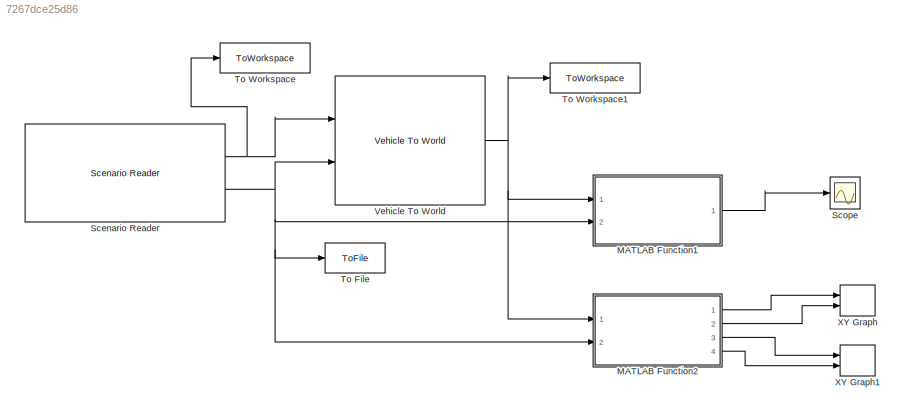
MODEL slx_7267dce25d86
KIND model
CONFIG AbsTol = auto
CONFIG EnableMultiTasking = off
CONFIG FixedStep = auto
CONFIG MaxStep = auto
CONFIG MinStep = auto
CONFIG RelTol = 1e-3
CONFIG SampleTimeConstraint = Unconstrained
CONFIG SolverName = FixedStepDiscrete
CONFIG StartTime = 0.0
CONFIG StopTime = 10.0
WORKSPACE source: mxarray member
WORKSPACE firstWarning = 1
WORKSPACE originalScenarioChecksum = '40B3C482BC2D2C68EC305C2064A27088'
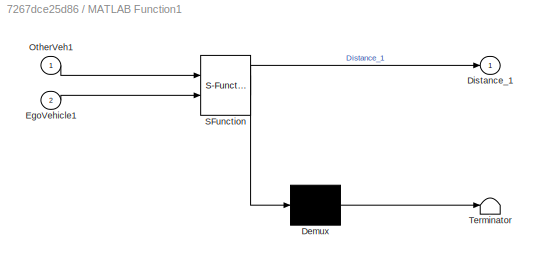
BLOCK [SubSystem] MATLAB Function1
  ErrorFcn = Stateflow.Translate.translate
  PermitHierarchicalResolution = ExplicitOnly
  Ports = [2, 1]
  RequestExecContextInheritance = off
  SFBlockType = MATLAB Function
  TreatAsAtomicUnit = on
BLOCK [Demux] MATLAB Function1/ Demux 
  Outputs = 1
  Ports = [1, 1]
BLOCK [S-Function] MATLAB Function1/ SFunction 
  EnableBusSupport = on
  FunctionName = sf_sfun
  PortCounts = [2 2]
  Ports = [2, 2]
  SFcnIsStateOwnerBlock = off
  SFunctionDeploymentMode = off
  Tag = Stateflow S-Function 2
BLOCK [Terminator] MATLAB Function1/ Terminator 
BLOCK [Outport] MATLAB Function1/Distance_1
BLOCK [Inport] MATLAB Function1/EgoVehicle1
  Port = 2
BLOCK [Inport] MATLAB Function1/OtherVeh1
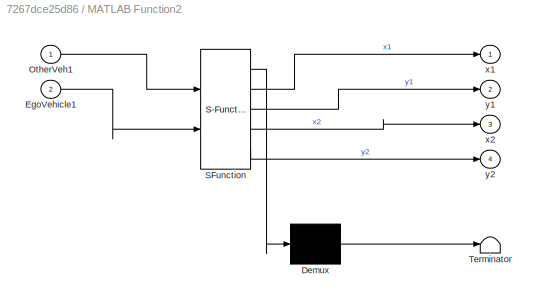
BLOCK [SubSystem] MATLAB Function2
  ErrorFcn = Stateflow.Translate.translate
  PermitHierarchicalResolution = ExplicitOnly
  Ports = [2, 4]
  RequestExecContextInheritance = off
  SFBlockType = MATLAB Function
  TreatAsAtomicUnit = on
BLOCK [Demux] MATLAB Function2/ Demux 
  Outputs = 1
  Ports = [1, 1]
BLOCK [S-Function] MATLAB Function2/ SFunction 
  EnableBusSupport = on
  FunctionName = sf_sfun
  PortCounts = [2 5]
  Ports = [2, 5]
  SFcnIsStateOwnerBlock = off
  SFunctionDeploymentMode = off
  Tag = Stateflow S-Function 1
BLOCK [Terminator] MATLAB Function2/ Terminator 
BLOCK [Inport] MATLAB Function2/EgoVehicle1
  Port = 2
BLOCK [Inport] MATLAB Function2/OtherVeh1
BLOCK [Outport] MATLAB Function2/x1
BLOCK [Outport] MATLAB Function2/x2
  Port = 3
BLOCK [Outport] MATLAB Function2/y1
  Port = 2
BLOCK [Outport] MATLAB Function2/y2
  Port = 4
BLOCK [Reference] Scenario Reader  REF=drivingscenarioandsensors/Scenario Reader
  Ports = [0, 2]
  SourceBlock = drivingscenarioandsensors/Scenario Reader
  SourceProductBaseCode = DR
  SourceType = driving.scenario.internal.ScenarioReader
BLOCK [Scope] Scope
  Floating = off
  NumInputPorts = 1
  Ports = [1]
  ScopeSpecificationString = Simulink.scopes.TimeScopeBlockCfg('CurrentConfiguration', extmgr.ConfigurationSet(extmgr.Configuration('Core','General UI',true),extmgr.Configuration('Core','Source UI',true),extmgr.Configuration('Sources','WiredSimulink',true),extmgr.Configuration('Visuals','Time Domain',true,'SerializedDisplays',{struct('MinYLimReal','-1.29589','MaxYLimReal','39.41957','YLabelReal','','MinYLimMag','0.00000','Max...<+1382ch>
BLOCK [ToFile] To File
  Filename = egoCar1.mat
  Ports = [1]
  SaveFormat = Timeseries
BLOCK [ToWorkspace] To Workspace
  FixptAsFi = on
  MaxDataPoints = inf
  Ports = [1]
  SampleTime = -1
  SaveFormat = Timeseries
  VariableName = Actors1
BLOCK [ToWorkspace] To Workspace1
  FixptAsFi = on
  MaxDataPoints = inf
  Ports = [1]
  SampleTime = -1
  SaveFormat = Timeseries
  VariableName = Actors2
BLOCK [Reference] Vehicle To World  REF=drivingscenarioandsensors/Vehicle To World
  Ports = [2, 1]
  SourceBlock = drivingscenarioandsensors/Vehicle To World
  SourceProductBaseCode = DR
  SourceType = driving.scenario.internal.VehicleToWorld
BLOCK [Record] XY Graph
  CompatibilityTag = XY
  FileSettingsInternal = {"entries":[{"content":{"excelSettings":{"content":{},"type":"Streamout.ExcelSettings"}},"type":"Streamout.FileSettingStorage","uuid":"b51cf517-17e0-4542-acce-b7d9d2cd1a5a"}],"packageUris":["http://schema.mathworks.com/mf0/streamout_blocks/R2020a"],"version":"1.0"}
  Layout = [1 1]
  Ports = [2]
  SignalsInternal = {"entries":[{"content":{"signals":[{"content":{"blockPath":["ScenarioAnalysis/XY Graph"],"channel":[],"dimensions":[1],"domain":"ScenarioAnalysis/XY Graph","lineColor":"#a2142f","plots":[1],"port":1,"sid":[],"signalID":35,"signalName":"MATLAB Function2:1"},"type":"RecordBlkView.Signal","uuid":"04b8474e-6d3d-4901-9223-983ad539c10e"},{"content":{"blockPath":["ScenarioAnalysis/XY Graph"],"channel":[]...<+409ch>
  VisualizationBindings = {"xyplotplugin":{"info":[{"series":[{"bindingParametersList":[{"parameter":"X-Axis","signalID":35,"signalName":"MATLAB Function2:1"},{"parameter":"Y-Axis","signalID":38,"signalName":"MATLAB Function2:2"}],"seriesID":38687}],"subplotID":1}]}}
BLOCK [Record] XY Graph1
  CompatibilityTag = XY
  FileSettingsInternal = {"entries":[{"content":{"excelSettings":{"content":{},"type":"Streamout.ExcelSettings"}},"type":"Streamout.FileSettingStorage","uuid":"6fa187cc-d8dd-4e57-b1e9-641f2adc0ef9"}],"packageUris":["http://schema.mathworks.com/mf0/streamout_blocks/R2020a"],"version":"1.0"}
  Layout = [1 1]
  Ports = [2]
  SignalsInternal = {"entries":[{"content":{"signals":[{"content":{"blockPath":["ScenarioAnalysis/XY Graph1"],"channel":[],"dimensions":[1],"domain":"ScenarioAnalysis/XY Graph1","lineColor":"#a2142f","plots":[1],"port":1,"sid":[],"signalID":27,"signalName":"MATLAB Function2:3"},"type":"RecordBlkView.Signal","uuid":"58223eaa-ceba-43fe-afc1-79236a0d2be0"},{"content":{"blockPath":["ScenarioAnalysis/XY Graph1"],"channel"...<+413ch>
  VisualizationBindings = {"xyplotplugin":{"info":[{"series":[{"bindingParametersList":[{"parameter":"X-Axis","signalID":27,"signalName":"MATLAB Function2:3"},{"parameter":"Y-Axis","signalID":30,"signalName":"MATLAB Function2:4"}],"seriesID":22770}],"subplotID":1}]}}
LINE MATLAB Function1:1 -> Scope:1
LINE MATLAB Function2:1 -> XY Graph:1
LINE MATLAB Function2:2 -> XY Graph:2
LINE MATLAB Function2:3 -> XY Graph1:1
LINE MATLAB Function2:4 -> XY Graph1:2
NET Scenario Reader:1 -> To Workspace:1, Vehicle To World:1
NET Scenario Reader:2 -> MATLAB Function1:2, MATLAB Function2:2, To File:1, Vehicle To World:2
NET Vehicle To World:1 -> MATLAB Function1:1, MATLAB Function2:1, To Workspace1:1
note: NET lines group one-source signal fan-out (src -> all destinations, sorted); 1:1 wires keep LINE
CHART MATLAB Function2 states=1 transitions=1
  STATE_LABEL 'eML_blk_kernel()'
  STATE_LABEL 'SCRIPT:\nfunction [x1,y1,x2,y2] = Position_Extract (OtherVeh1, EgoVehicle1)\n\n\nx1=OtherVeh1.Actors.Position(:,1);\ny1=OtherVeh1.Actors.Position(:,2);\n\nx2=EgoVehicle1.Position(:,1);\ny2=EgoVehicle1.Position(:,2);\n\n'
CHART MATLAB Function1 states=1 transitions=1
  STATE_LABEL 'eML_blk_kernel()'
  STATE_LABEL 'SCRIPT:\nfunction Distance_1 = Dist_Cal (OtherVeh1, EgoVehicle1)\n\n\nx1=OtherVeh1.Actors.Position(:,1);\ny1=OtherVeh1.Actors.Position(:,2);\n\nx2=EgoVehicle1.Position(:,1);\ny2=EgoVehicle1.Position(:,2);\n\n\n\nDistance_1=sqrt((x1-x2)^2+(y1-y2)^2);'
CHART  states=0 transitions=0
CHART  states=0 transitions=0
